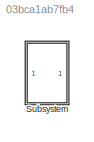
MODEL slx_03bca1ab7fb4
KIND model
CONFIG AbsTol = auto
CONFIG FixedStep = auto
CONFIG MaxStep = auto
CONFIG MinStep = auto
CONFIG PostLoadFcn = % Import the data from Excel for a lookup table\ndata = xlsread('thrust_curve','Sheet1');\n% Row indices for lookup table\nbreakpoints1 = data(2:end,1)';\n% Column indices for lookup table\nbreakpoints2 = data(1,2:end);\n% Output values for lookup table\ntable_data = data(2:end,2:end);
CONFIG RelTol = 1e-3
CONFIG SampleTimeConstraint = Unconstrained
CONFIG Solver = ode45
CONFIG SolverMode = Auto
CONFIG SolverName = ode45
CONFIG StartTime = 0.0
CONFIG StopTime = 10.0
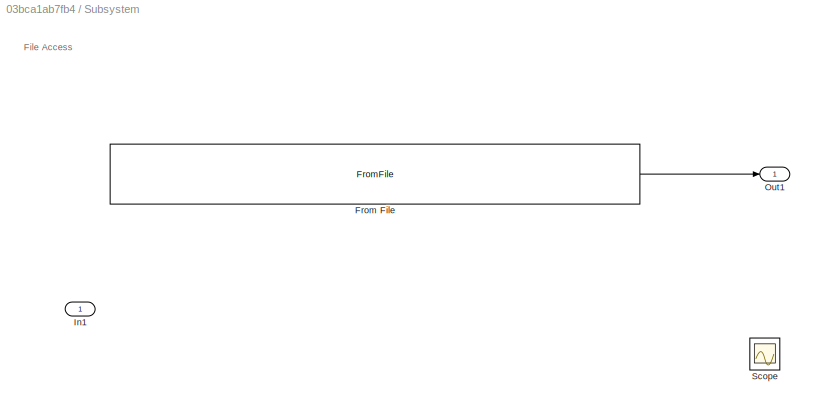
BLOCK [SubSystem] Subsystem
  Ports = [1, 1]
  RequestExecContextInheritance = off
BLOCK [FromFile] Subsystem/From File
  FileName = <userpath>\Documents\Space\Rocketry\Performance\rocketry-performance\functions\data\thrust_curve.mat
  SampleTime = 0.01
BLOCK [Inport] Subsystem/In1
  IconDisplay = Port number
BLOCK [Outport] Subsystem/Out1
  IconDisplay = Port number
BLOCK [Scope] Subsystem/Scope
  DataFormat = StructureWithTime
  Floating = off
  NumInputPorts = 1
  Ports = [1]
  SampleTime = 0
  ShowLegends = off
ANNOTATION Subsystem: File Access
LINE Subsystem/From File:1 -> Subsystem/Out1:1
CHART User-Defined
Functions/MATLAB Function states=1 transitions=1
  STATE_LABEL 'eML_blk_kernel()'
  STATE_LABEL 'SCRIPT:\nfunction y = fcn(u)\n%#codegen\n\ny = u;'
CHART Air Density states=1 transitions=1
  STATE_LABEL 'eML_blk_kernel()'
  STATE_LABEL 'SCRIPT:\nfunction rho = ISA_model(T_in, P_in, alt_in)\n\n% This model computes the gas characteristics of the atmosphere around the\n% rocket based on temperature and pressure at launch and current altitude.\n% It uses the International Standard Atmosphere (ISA) model. This model is \n% only effective BELOW the tropopause.\n\n% Model is based on the following document:\n%   http://home.anadolu.edu.tr/~mcav...<+1399ch>'
